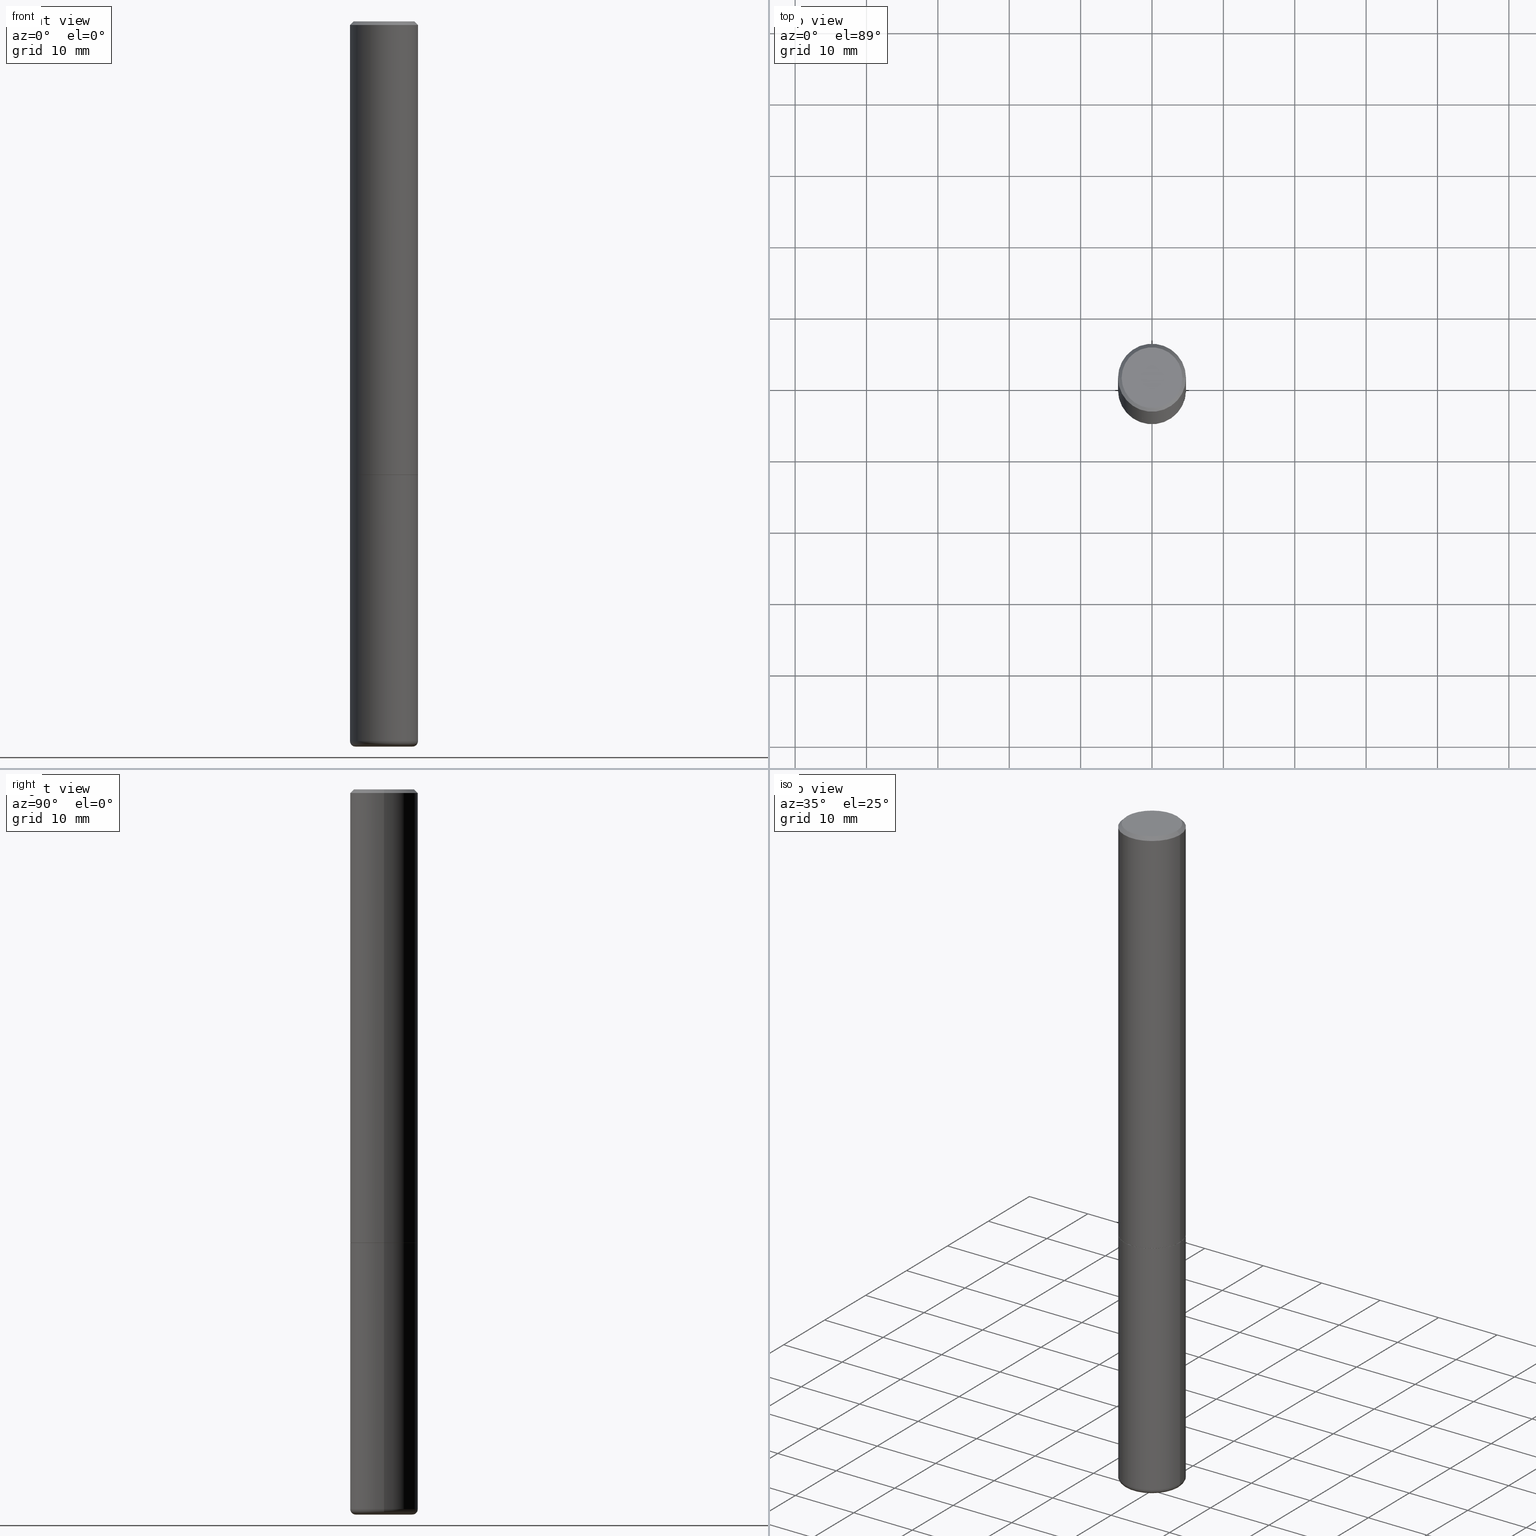
[diagram: canonical four-view strip — front | top / right | iso, engineering-drawing reading convention]
A machine part, canonical four-view strip (front | top / right | iso — engineering-drawing reading convention). The complete STEP part file that produces these views, byte-faithful:
ISO-10303-21;
HEADER;
FILE_DESCRIPTION (( 'STEP AP203' ),
    '1' );
FILE_NAME ('32569.STEP',
    '2022-04-26T19:38:32',
    ( '' ),
    ( '' ),
    'SwSTEP 2.0',
    'SolidWorks 2022',
    '' );
FILE_SCHEMA (( 'CONFIG_CONTROL_DESIGN' ));
ENDSEC;

DATA;
#1 =( CONVERSION_BASED_UNIT ( 'INCH', #295 ) LENGTH_UNIT ( ) NAMED_UNIT ( #7 ) );
#2 = ORIENTED_EDGE ( 'NONE', *, *, #63, .T. ) ;
#3 = VECTOR ( 'NONE', #189, 39.37007874015748143 ) ;
#4 = CIRCLE ( 'NONE', #79, 0.1674999999999997047 ) ;
#5 = CALENDAR_DATE ( 2022, 26, 4 ) ;
#6 = VERTEX_POINT ( 'NONE', #159 ) ;
#7 = DIMENSIONAL_EXPONENTS ( 1.000000000000000000, 0.000000000000000000, 0.000000000000000000, 0.000000000000000000, 0.000000000000000000, 0.000000000000000000, 0.000000000000000000 ) ;
#8 = DATE_AND_TIME ( #269, #179 ) ;
#9 = CARTESIAN_POINT ( 'NONE',  ( 0.1874999999999999722, -1.003451736783519694E-14, -2.499000000000000110 ) ) ;
#10 = PERSON_AND_ORGANIZATION_ROLE ( 'creator' ) ;
#11 = MANIFOLD_SOLID_BREP ( 'Body-Move/Copy2[2]', #406 ) ;
#12 = CALENDAR_DATE ( 2022, 26, 4 ) ;
#13 = PERSON_AND_ORGANIZATION_ROLE ( 'design_supplier' ) ;
#14 = ORIENTED_EDGE ( 'NONE', *, *, #337, .T. ) ;
#15 = ADVANCED_FACE ( 'NONE', ( #283 ), #221, .F. ) ;
#16 = DIRECTION ( 'NONE',  ( -2.445468806185136597E-29, 3.491481338843145583E-15, 1.000000000000000000 ) ) ;
#17 = APPLICATION_CONTEXT ( 'configuration controlled 3d designs of mechanical parts and assemblies' ) ;
#18 = ORIENTED_EDGE ( 'NONE', *, *, #135, .T. ) ;
#19 = CC_DESIGN_PERSON_AND_ORGANIZATION_ASSIGNMENT ( #46, #13, ( #136 ) ) ;
#20 = VERTEX_POINT ( 'NONE', #261 ) ;
#21 = VECTOR ( 'NONE', #388, 39.37007874015747433 ) ;
#22 = AXIS2_PLACEMENT_3D ( 'NONE', #314, #215, #25 ) ;
#23 = CC_DESIGN_PERSON_AND_ORGANIZATION_ASSIGNMENT ( #134, #297, ( #278 ) ) ;
#24 = CYLINDRICAL_SURFACE ( 'NONE', #263, 0.1875000000000000278 ) ;
#25 = DIRECTION ( 'NONE',  ( -1.000000000000000000, 6.982962677686267499E-15, 0.000000000000000000 ) ) ;
#26 = DIRECTION ( 'NONE',  ( -6.982962677686266711E-15, -1.000000000000000000, 3.491481338843145583E-15 ) ) ;
#27 = FACE_OUTER_BOUND ( 'NONE', #320, .T. ) ;
#28 = DIRECTION ( 'NONE',  ( 7.105427357601001859E-15, 1.000000000000000000, -3.491481338843145583E-15 ) ) ;
#29 = CARTESIAN_POINT ( 'NONE',  ( 6.263108486011318528E-46, -8.942059022282683748E-32, -2.561107494060246767E-17 ) ) ;
#30 = VERTEX_POINT ( 'NONE', #366 ) ;
#31 = AXIS2_PLACEMENT_3D ( 'NONE', #155, #397, #290 ) ;
#32 = VERTEX_POINT ( 'NONE', #97 ) ;
#33 = EDGE_CURVE ( 'NONE', #301, #99, #246, .T. ) ;
#34 = CARTESIAN_POINT ( 'NONE',  ( 4.890937612370290675E-31, -6.982962677686316261E-17, -0.02000000000000007327 ) ) ;
#35 = EDGE_LOOP ( 'NONE', ( #131, #153 ) ) ;
#36 = PRODUCT_RELATED_PRODUCT_CATEGORY ( 'detail', '', ( #278 ) ) ;
#37 = CARTESIAN_POINT ( 'NONE',  ( 0.000000000000000000, 0.000000000000000000, 0.000000000000000000 ) ) ;
#38 = DIRECTION ( 'NONE',  ( -2.445468806185136597E-29, 3.491481338843145583E-15, 1.000000000000000000 ) ) ;
#39 = EDGE_LOOP ( 'NONE', ( #150, #227, #440, #404 ) ) ;
#40 = COORDINATED_UNIVERSAL_TIME_OFFSET ( 5, 0, .BEHIND. ) ;
#41 = EDGE_LOOP ( 'NONE', ( #200, #252, #328, #71 ) ) ;
#42 = CIRCLE ( 'NONE', #380, 0.1875000000000000278 ) ;
#43 = APPROVAL_ROLE ( '' ) ;
#44 = ORIENTED_EDGE ( 'NONE', *, *, #303, .F. ) ;
#45 =( NAMED_UNIT ( * ) SI_UNIT ( $, .STERADIAN. ) SOLID_ANGLE_UNIT ( ) );
#46 = PERSON_AND_ORGANIZATION ( #236, #82 ) ;
#47 = AXIS2_PLACEMENT_3D ( 'NONE', #242, #240, #342 ) ;
#48 = CARTESIAN_POINT ( 'NONE',  ( -0.1875000000000000278, -9.962674501607386737E-15, -2.500000000000000000 ) ) ;
#49 = DIRECTION ( 'NONE',  ( 1.000000000000000000, -6.982962677686269077E-15, 0.000000000000000000 ) ) ;
#50 = VECTOR ( 'NONE', #218, 39.37007874015748143 ) ;
#51 = CARTESIAN_POINT ( 'NONE',  ( -0.1569764278068825070, -1.286974886563502981E-14, -3.999995430854691669 ) ) ;
#52 = DIRECTION ( 'NONE',  ( -2.445468806185136597E-29, 3.491481338843145583E-15, 1.000000000000000000 ) ) ;
#53 = CIRCLE ( 'NONE', #382, 0.1875000000000000278 ) ;
#54 = CARTESIAN_POINT ( 'NONE',  ( 6.113672015462842613E-29, -8.728703347107864943E-15, -2.500000000000000000 ) ) ;
#55 = VECTOR ( 'NONE', #288, 39.37007874015748143 ) ;
#56 = LINE ( 'NONE', #315, #171 ) ;
#57 = LINE ( 'NONE', #348, #55 ) ;
#58 = CARTESIAN_POINT ( 'NONE',  ( 6.113672015462842613E-29, -8.728703347107864943E-15, -2.500000000000000000 ) ) ;
#59 =( LENGTH_UNIT ( ) NAMED_UNIT ( * ) SI_UNIT ( $, .METRE. ) );
#60 = ORIENTED_EDGE ( 'NONE', *, *, #284, .F. ) ;
#61 = ADVANCED_BREP_SHAPE_REPRESENTATION ( '32569', ( #143, #11, #323 ), #184 ) ;
#62 = DIRECTION ( 'NONE',  ( -2.445468806185136597E-29, 3.491481338843145583E-15, 1.000000000000000000 ) ) ;
#63 = EDGE_CURVE ( 'NONE', #101, #123, #195, .T. ) ;
#64 = CYLINDRICAL_SURFACE ( 'NONE', #126, 0.1874999999999998335 ) ;
#65 = DIRECTION ( 'NONE',  ( 2.438088387897960049E-29, -3.491481338843145188E-15, -1.000000000000000000 ) ) ;
#66 = ORIENTED_EDGE ( 'NONE', *, *, #72, .T. ) ;
#67 = VECTOR ( 'NONE', #389, 39.37007874015748143 ) ;
#68 = DIRECTION ( 'NONE',  ( -2.445468806185136597E-29, 3.491481338843145583E-15, 1.000000000000000000 ) ) ;
#69 = ORIENTED_EDGE ( 'NONE', *, *, #90, .F. ) ;
#70 = DATE_AND_TIME ( #5, #270 ) ;
#71 = ORIENTED_EDGE ( 'NONE', *, *, #360, .F. ) ;
#72 = EDGE_CURVE ( 'NONE', #32, #192, #414, .T. ) ;
#73 = PERSON_AND_ORGANIZATION ( #236, #82 ) ;
#74 = ORIENTED_EDGE ( 'NONE', *, *, #107, .T. ) ;
#75 = DIRECTION ( 'NONE',  ( -2.445468806185136877E-29, 3.491481338843145188E-15, 1.000000000000000000 ) ) ;
#76 = CONICAL_SURFACE ( 'NONE', #204, 0.1874999999999996669, 0.7853981633974460586 ) ;
#77 = APPLICATION_PROTOCOL_DEFINITION ( 'international standard', 'config_control_design', 1994, #17 ) ;
#78 = APPLICATION_PROTOCOL_DEFINITION ( 'international standard', 'config_control_design', 1994, #308 ) ;
#79 = AXIS2_PLACEMENT_3D ( 'NONE', #29, #38, #319 ) ;
#80 = DIRECTION ( 'NONE',  ( 1.000000000000000000, -6.982962677686262766E-15, 0.000000000000000000 ) ) ;
#81 = CIRCLE ( 'NONE', #423, 0.02999999999999998848 ) ;
#82 = ORGANIZATION ( 'UNSPECIFIED', 'UNSPECIFIED', '' ) ;
#83 = ORIENTED_EDGE ( 'NONE', *, *, #279, .F. ) ;
#84 = DIRECTION ( 'NONE',  ( 1.000000000000000000, -6.982962677686267499E-15, 0.000000000000000000 ) ) ;
#85 = DIRECTION ( 'NONE',  ( 1.000000000000000000, -6.982962677686266711E-15, 4.876176775795935793E-29 ) ) ;
#86 = FACE_OUTER_BOUND ( 'NONE', #293, .T. ) ;
#87 = AXIS2_PLACEMENT_3D ( 'NONE', #92, #327, #147 ) ;
#88 = CARTESIAN_POINT ( 'NONE',  ( 0.000000000000000000, 0.000000000000000000, 0.000000000000000000 ) ) ;
#89 = EDGE_LOOP ( 'NONE', ( #400, #127, #14, #44 ) ) ;
#90 = EDGE_CURVE ( 'NONE', #233, #20, #105, .T. ) ;
#91 = DIRECTION ( 'NONE',  ( -2.438088387897960049E-29, 3.491481338843145188E-15, 1.000000000000000000 ) ) ;
#92 = CARTESIAN_POINT ( 'NONE',  ( 1.060534628401079487E-27, -1.514162378556626208E-13, -43.36733413727260000 ) ) ;
#93 = ORIENTED_EDGE ( 'NONE', *, *, #210, .T. ) ;
#94 = DIRECTION ( 'NONE',  ( 1.000000000000000000, -6.982962677686266711E-15, 0.000000000000000000 ) ) ;
#95 = VERTEX_POINT ( 'NONE', #186 ) ;
#96 = PRODUCT_DEFINITION_SHAPE ( 'NONE', 'NONE',  #172 ) ;
#97 = CARTESIAN_POINT ( 'NONE',  ( 0.1864999999999999991, -1.003102588649635236E-14, -2.500000000000000000 ) ) ;
#98 = DESIGN_CONTEXT ( 'detailed design', #17, 'design' ) ;
#99 = VERTEX_POINT ( 'NONE', #405 ) ;
#100 = COORDINATED_UNIVERSAL_TIME_OFFSET ( 5, 0, .BEHIND. ) ;
#101 = VERTEX_POINT ( 'NONE', #198 ) ;
#102 = CARTESIAN_POINT ( 'NONE',  ( -0.1875000000000000278, 1.332267629550188046E-15, -9.223003294227947991E-30 ) ) ;
#103 = APPROVAL_DATE_TIME ( #238, #108 ) ;
#104 = CC_DESIGN_SECURITY_CLASSIFICATION ( #381, ( #136 ) ) ;
#105 = CIRCLE ( 'NONE', #286, 0.1875000000000000278 ) ;
#106 = DATE_AND_TIME ( #12, #110 ) ;
#107 = EDGE_CURVE ( 'NONE', #123, #101, #343, .T. ) ;
#108 = APPROVAL ( #137, 'UNSPECIFIED' ) ;
#109 = APPROVAL_STATUS ( 'not_yet_approved' ) ;
#110 = LOCAL_TIME ( 15, 38, 32.00000000000000000, #100 ) ;
#111 = AXIS2_PLACEMENT_3D ( 'NONE', #291, #167, #438 ) ;
#112 = ORIENTED_EDGE ( 'NONE', *, *, #329, .T. ) ;
#113 = CARTESIAN_POINT ( 'NONE',  ( 1.309305502066236145E-15, 0.1874999999999912847, -2.500000000000000444 ) ) ;
#114 = ADVANCED_FACE ( 'NONE', ( #391 ), #24, .T. ) ;
#115 = DIRECTION ( 'NONE',  ( -2.445468806185136597E-29, 3.491481338843145583E-15, 1.000000000000000000 ) ) ;
#116 = CARTESIAN_POINT ( 'NONE',  ( 9.708511160554992872E-29, -1.386118091520728738E-14, -3.970000000000000195 ) ) ;
#117 = VERTEX_POINT ( 'NONE', #285 ) ;
#118 = DIRECTION ( 'NONE',  ( -2.445468806185136597E-29, 3.491481338843145583E-15, 1.000000000000000000 ) ) ;
#119 = CARTESIAN_POINT ( 'NONE',  ( 0.1874999999999996669, -1.356173001359023100E-15, -0.02000000000000007327 ) ) ;
#120 = ORIENTED_EDGE ( 'NONE', *, *, #33, .T. ) ;
#121 = CARTESIAN_POINT ( 'NONE',  ( 1.608314383320515846E-18, -1.395634262561750239E-14, -3.997255397115124342 ) ) ;
#122 = CARTESIAN_POINT ( 'NONE',  ( -0.1875000000000000278, -1.252891328565709953E-14, -3.969999999999999307 ) ) ;
#123 = VERTEX_POINT ( 'NONE', #353 ) ;
#124 = CARTESIAN_POINT ( 'NONE',  ( 0.1575000000000000289, -1.496099753694287407E-14, -3.970000000000000195 ) ) ;
#125 = FACE_OUTER_BOUND ( 'NONE', #289, .T. ) ;
#126 = AXIS2_PLACEMENT_3D ( 'NONE', #427, #322, #85 ) ;
#127 = ORIENTED_EDGE ( 'NONE', *, *, #243, .T. ) ;
#128 = CIRCLE ( 'NONE', #182, 0.1874999999999999722 ) ;
#129 = CC_DESIGN_APPROVAL ( #138, ( #136 ) ) ;
#130 = DIRECTION ( 'NONE',  ( 0.000000000000000000, 0.000000000000000000, 1.000000000000000000 ) ) ;
#131 = ORIENTED_EDGE ( 'NONE', *, *, #341, .T. ) ;
#132 = DATE_TIME_ROLE ( 'creation_date' ) ;
#133 = FACE_OUTER_BOUND ( 'NONE', #365, .T. ) ;
#134 = PERSON_AND_ORGANIZATION ( #236, #82 ) ;
#135 = EDGE_CURVE ( 'NONE', #220, #430, #211, .T. ) ;
#136 = PRODUCT_DEFINITION_FORMATION_WITH_SPECIFIED_SOURCE ( 'ANY', '', #278, .NOT_KNOWN. ) ;
#137 = APPROVAL_STATUS ( 'not_yet_approved' ) ;
#138 = APPROVAL ( #109, 'UNSPECIFIED' ) ;
#139 = FACE_OUTER_BOUND ( 'NONE', #35, .T. ) ;
#140 = CIRCLE ( 'NONE', #287, 0.1569764278068817576 ) ;
#141 = ADVANCED_FACE ( 'NONE', ( #294 ), #442, .T. ) ;
#142 = EDGE_CURVE ( 'NONE', #117, #101, #56, .T. ) ;
#143 = MANIFOLD_SOLID_BREP ( 'Body-Move/Copy2[1]', #163 ) ;
#144 = AXIS2_PLACEMENT_3D ( 'NONE', #259, #250, #395 ) ;
#145 = DIRECTION ( 'NONE',  ( 1.000000000000000000, -6.982962677686265922E-15, 4.876176775795935793E-29 ) ) ;
#146 = EDGE_CURVE ( 'NONE', #99, #6, #81, .T. ) ;
#147 = DIRECTION ( 'NONE',  ( -1.000000000000000000, 6.982962677686267499E-15, 0.000000000000000000 ) ) ;
#148 = DIRECTION ( 'NONE',  ( 1.000000000000000000, -6.982962677686265922E-15, 4.876176775795935793E-29 ) ) ;
#149 = FACE_OUTER_BOUND ( 'NONE', #166, .T. ) ;
#150 = ORIENTED_EDGE ( 'NONE', *, *, #142, .F. ) ;
#151 = FACE_OUTER_BOUND ( 'NONE', #346, .T. ) ;
#152 = AXIS2_PLACEMENT_3D ( 'NONE', #37, #214, #193 ) ;
#153 = ORIENTED_EDGE ( 'NONE', *, *, #441, .T. ) ;
#154 = CIRCLE ( 'NONE', #407, 0.1864999999999999991 ) ;
#155 = CARTESIAN_POINT ( 'NONE',  ( 6.113672015462842613E-29, -8.728703347107864943E-15, -2.500000000000000000 ) ) ;
#156 = FACE_OUTER_BOUND ( 'NONE', #39, .T. ) ;
#157 = DIRECTION ( 'NONE',  ( 1.000000000000000000, -6.982962677686265922E-15, 4.876176775795935793E-29 ) ) ;
#158 = ORIENTED_EDGE ( 'NONE', *, *, #135, .F. ) ;
#159 = CARTESIAN_POINT ( 'NONE',  ( 0.1875000000000000278, -1.517048641727346081E-14, -3.969999999999999307 ) ) ;
#160 = CARTESIAN_POINT ( 'NONE',  ( 0.000000000000000000, 0.000000000000000000, 0.000000000000000000 ) ) ;
#161 = ORIENTED_EDGE ( 'NONE', *, *, #176, .F. ) ;
#162 = EDGE_LOOP ( 'NONE', ( #177, #436, #74, #83 ) ) ;
#163 = CLOSED_SHELL ( 'NONE', ( #387, #273, #363, #345, #433, #114, #398 ) ) ;
#164 = VECTOR ( 'NONE', #183, 39.37007874015748143 ) ;
#165 = CALENDAR_DATE ( 2022, 26, 4 ) ;
#166 = EDGE_LOOP ( 'NONE', ( #296, #281, #361, #2 ) ) ;
#167 = DIRECTION ( 'NONE',  ( -2.445468806185136597E-29, 3.491481338843145583E-15, 1.000000000000000000 ) ) ;
#168 = ADVANCED_FACE ( 'NONE', ( #217 ), #310, .T. ) ;
#169 =( NAMED_UNIT ( * ) PLANE_ANGLE_UNIT ( ) SI_UNIT ( $, .RADIAN. ) );
#170 = UNCERTAINTY_MEASURE_WITH_UNIT (LENGTH_MEASURE( 1.000000000000000082E-05 ), #1, 'distance_accuracy_value', 'NONE');
#171 = VECTOR ( 'NONE', #321, 39.37007874015748143 ) ;
#172 = PRODUCT_DEFINITION ( 'UNKNOWN', '', #136, #98 ) ;
#173 = AXIS2_PLACEMENT_3D ( 'NONE', #248, #62, #350 ) ;
#174 = AXIS2_PLACEMENT_3D ( 'NONE', #373, #340, #206 ) ;
#175 = EDGE_CURVE ( 'NONE', #298, #117, #128, .T. ) ;
#176 = EDGE_CURVE ( 'NONE', #298, #123, #209, .T. ) ;
#177 = ORIENTED_EDGE ( 'NONE', *, *, #441, .F. ) ;
#178 = CARTESIAN_POINT ( 'NONE',  ( 4.890937612370290675E-31, -6.982962677686316261E-17, -0.02000000000000007327 ) ) ;
#179 = LOCAL_TIME ( 15, 38, 32.00000000000000000, #40 ) ;
#180 = LINE ( 'NONE', #258, #50 ) ;
#181 = APPROVAL_PERSON_ORGANIZATION ( #232, #108, #237 ) ;
#182 = AXIS2_PLACEMENT_3D ( 'NONE', #437, #401, #49 ) ;
#183 = DIRECTION ( 'NONE',  ( -2.445468806185136877E-29, 3.491481338843145188E-15, 1.000000000000000000 ) ) ;
#184 =( GEOMETRIC_REPRESENTATION_CONTEXT ( 3 ) GLOBAL_UNCERTAINTY_ASSIGNED_CONTEXT ( ( #170 ) ) GLOBAL_UNIT_ASSIGNED_CONTEXT ( ( #1, #169, #45 ) ) REPRESENTATION_CONTEXT ( 'NONE', 'WORKASPACE' ) );
#185 = DIRECTION ( 'NONE',  ( -2.445468806185136597E-29, 3.491481338843145583E-15, 1.000000000000000000 ) ) ;
#186 = CARTESIAN_POINT ( 'NONE',  ( -0.1674999999999997047, 1.204561061900878878E-15, -2.561107494061076920E-17 ) ) ;
#187 = DIRECTION ( 'NONE',  ( 1.000000000000000000, -6.982962677686271444E-15, 0.000000000000000000 ) ) ;
#188 = DIRECTION ( 'NONE',  ( -1.000000000000000000, 6.982962677686267499E-15, 0.000000000000000000 ) ) ;
#189 = DIRECTION ( 'NONE',  ( -2.445468806185136877E-29, 3.491481338843145188E-15, 1.000000000000000000 ) ) ;
#190 = ORIENTED_EDGE ( 'NONE', *, *, #72, .F. ) ;
#191 = DIRECTION ( 'NONE',  ( -2.445468806185136597E-29, 3.491481338843145583E-15, 1.000000000000000000 ) ) ;
#192 = VERTEX_POINT ( 'NONE', #386 ) ;
#193 = DIRECTION ( 'NONE',  ( 1.000000000000000000, -6.982962677686266711E-15, 4.876176775795935793E-29 ) ) ;
#194 = DIRECTION ( 'NONE',  ( 2.445468806185136597E-29, -3.491481338843145583E-15, -1.000000000000000000 ) ) ;
#195 = CIRCLE ( 'NONE', #249, 0.1874999999999996669 ) ;
#196 = EDGE_LOOP ( 'NONE', ( #60, #396, #267, #69 ) ) ;
#197 = AXIS2_PLACEMENT_3D ( 'NONE', #277, #16, #80 ) ;
#198 = CARTESIAN_POINT ( 'NONE',  ( -0.1874999999999996669, 1.239475875289309738E-15, -0.02000000000000007327 ) ) ;
#199 = ORIENTED_EDGE ( 'NONE', *, *, #256, .F. ) ;
#200 = ORIENTED_EDGE ( 'NONE', *, *, #338, .T. ) ;
#201 = EDGE_CURVE ( 'NONE', #430, #6, #42, .T. ) ;
#202 = DATE_TIME_ROLE ( 'classification_date' ) ;
#203 = ORIENTED_EDGE ( 'NONE', *, *, #383, .T. ) ;
#204 = AXIS2_PLACEMENT_3D ( 'NONE', #34, #292, #408 ) ;
#205 = PERSON_AND_ORGANIZATION ( #236, #82 ) ;
#206 = DIRECTION ( 'NONE',  ( 1.000000000000000000, -6.982962677686269077E-15, 0.000000000000000000 ) ) ;
#207 = APPROVAL_DATE_TIME ( #70, #379 ) ;
#208 = AXIS2_PLACEMENT_3D ( 'NONE', #58, #91, #148 ) ;
#209 = LINE ( 'NONE', #245, #3 ) ;
#210 = EDGE_CURVE ( 'NONE', #20, #233, #53, .T. ) ;
#211 = CIRCLE ( 'NONE', #390, 0.02999999999999998848 ) ;
#212 = CC_DESIGN_PERSON_AND_ORGANIZATION_ASSIGNMENT ( #205, #10, ( #172 ) ) ;
#213 = DIRECTION ( 'NONE',  ( -2.445468806185136597E-29, 3.491481338843145583E-15, 1.000000000000000000 ) ) ;
#214 = DIRECTION ( 'NONE',  ( -2.445468806185136597E-29, 3.491481338843145583E-15, 1.000000000000000000 ) ) ;
#215 = DIRECTION ( 'NONE',  ( 2.445468806185136597E-29, -3.491481338843145583E-15, -1.000000000000000000 ) ) ;
#216 = AXIS2_PLACEMENT_3D ( 'NONE', #226, #52, #399 ) ;
#217 = FACE_OUTER_BOUND ( 'NONE', #325, .T. ) ;
#218 = DIRECTION ( 'NONE',  ( -0.7071067811865459074, 2.468850131082240100E-15, -0.7071067811865491270 ) ) ;
#219 = FACE_OUTER_BOUND ( 'NONE', #162, .T. ) ;
#220 = VERTEX_POINT ( 'NONE', #51 ) ;
#221 = PLANE ( 'NONE',  #208 ) ;
#222 = CYLINDRICAL_SURFACE ( 'NONE', #339, 0.1875000000000000278 ) ;
#223 = ORIENTED_EDGE ( 'NONE', *, *, #146, .T. ) ;
#224 = DIRECTION ( 'NONE',  ( 1.000000000000000000, -6.982962677686267499E-15, 0.000000000000000000 ) ) ;
#225 = ADVANCED_FACE ( 'NONE', ( #306 ), #251, .T. ) ;
#226 = CARTESIAN_POINT ( 'NONE',  ( 9.708511160554990630E-29, -1.386118091520728581E-14, -3.969999999999999307 ) ) ;
#227 = ORIENTED_EDGE ( 'NONE', *, *, #303, .T. ) ;
#228 = TOROIDAL_SURFACE ( 'NONE', #111, 0.1575000000000000289, 0.02999999999999999542 ) ;
#229 = CARTESIAN_POINT ( 'NONE',  ( -1.608314383125012578E-18, -1.395634262561750239E-14, -3.997255397115124342 ) ) ;
#230 = APPROVAL_ROLE ( '' ) ;
#231 = ORIENTED_EDGE ( 'NONE', *, *, #201, .F. ) ;
#232 = PERSON_AND_ORGANIZATION ( #236, #82 ) ;
#233 = VERTEX_POINT ( 'NONE', #48 ) ;
#234 = COORDINATED_UNIVERSAL_TIME_OFFSET ( 5, 0, .BEHIND. ) ;
#235 = AXIS2_PLACEMENT_3D ( 'NONE', #113, #65, #352 ) ;
#236 = PERSON ( 'UNSPECIFIED', 'UNSPECIFIED', 'UNSPECIFIED', ('UNSPECIFIED'), ('UNSPECIFIED'), ('UNSPECIFIED') ) ;
#237 = APPROVAL_ROLE ( '' ) ;
#238 = DATE_AND_TIME ( #165, #413 ) ;
#239 = CONICAL_SURFACE ( 'NONE', #344, 0.1874999999999996669, 0.7853981633974460586 ) ;
#240 = DIRECTION ( 'NONE',  ( 2.438088387897960049E-29, -3.491481338843145188E-15, -1.000000000000000000 ) ) ;
#241 = APPROVAL_PERSON_ORGANIZATION ( #417, #138, #230 ) ;
#242 = CARTESIAN_POINT ( 'NONE',  ( 1.169646248512447623E-15, 0.1674999999999997047, -5.976286617265271623E-16 ) ) ;
#243 = EDGE_CURVE ( 'NONE', #192, #32, #154, .T. ) ;
#244 = ORIENTED_EDGE ( 'NONE', *, *, #422, .T. ) ;
#245 = CARTESIAN_POINT ( 'NONE',  ( 0.1874999999999998335, -1.309305502066173825E-15, 9.142831454617371204E-30 ) ) ;
#246 = LINE ( 'NONE', #121, #21 ) ;
#247 = LINE ( 'NONE', #439, #67 ) ;
#248 = CARTESIAN_POINT ( 'NONE',  ( 6.113672015462842613E-29, -8.728703347107864943E-15, -2.500000000000000000 ) ) ;
#249 = AXIS2_PLACEMENT_3D ( 'NONE', #434, #257, #224 ) ;
#250 = DIRECTION ( 'NONE',  ( -2.445468806185136597E-29, 3.491481338843145583E-15, 1.000000000000000000 ) ) ;
#251 = CONICAL_SURFACE ( 'NONE', #197, 0.1864999999999999991, 0.7853981633975336552 ) ;
#252 = ORIENTED_EDGE ( 'NONE', *, *, #284, .T. ) ;
#253 = DIRECTION ( 'NONE',  ( 1.000000000000000000, -6.982962677686270655E-15, 0.000000000000000000 ) ) ;
#254 = DIRECTION ( 'NONE',  ( -2.445468806185136597E-29, 3.491481338843145583E-15, 1.000000000000000000 ) ) ;
#255 = ORIENTED_EDGE ( 'NONE', *, *, #256, .T. ) ;
#256 = EDGE_CURVE ( 'NONE', #99, #220, #424, .T. ) ;
#257 = DIRECTION ( 'NONE',  ( -2.445468806185136597E-29, 3.491481338843145583E-15, 1.000000000000000000 ) ) ;
#258 = CARTESIAN_POINT ( 'NONE',  ( -0.1874999999999996669, 1.239475875289309738E-15, -0.02000000000000007327 ) ) ;
#259 = CARTESIAN_POINT ( 'NONE',  ( 6.263108486011318528E-46, -8.942059022282683748E-32, -2.561107494060246767E-17 ) ) ;
#260 = ORIENTED_EDGE ( 'NONE', *, *, #175, .F. ) ;
#261 = CARTESIAN_POINT ( 'NONE',  ( 0.1875000000000000278, -1.003800884917403995E-14, -2.500000000000000000 ) ) ;
#262 = CARTESIAN_POINT ( 'NONE',  ( 4.890937612370290675E-31, -6.982962677686316261E-17, -0.02000000000000007327 ) ) ;
#263 = AXIS2_PLACEMENT_3D ( 'NONE', #88, #68, #145 ) ;
#264 = ORIENTED_EDGE ( 'NONE', *, *, #175, .T. ) ;
#265 = APPROVAL_PERSON_ORGANIZATION ( #375, #379, #43 ) ;
#266 = DATE_AND_TIME ( #330, #313 ) ;
#267 = ORIENTED_EDGE ( 'NONE', *, *, #360, .T. ) ;
#268 = PERSON_AND_ORGANIZATION ( #236, #82 ) ;
#269 = CALENDAR_DATE ( 2022, 26, 4 ) ;
#270 = LOCAL_TIME ( 15, 38, 32.00000000000000000, #234 ) ;
#271 = ADVANCED_FACE ( 'NONE', ( #156 ), #64, .T. ) ;
#272 = DIRECTION ( 'NONE',  ( 1.000000000000000000, -6.982962677686266711E-15, 0.000000000000000000 ) ) ;
#273 = ADVANCED_FACE ( 'NONE', ( #133 ), #228, .T. ) ;
#274 = PLANE ( 'NONE',  #47 ) ;
#275 = CONICAL_SURFACE ( 'NONE', #87, 2255.510300424621619, 1.553343034274961232 ) ;
#276 = CARTESIAN_POINT ( 'NONE',  ( 6.113672015462842613E-29, -8.728703347107864943E-15, -2.500000000000000000 ) ) ;
#277 = CARTESIAN_POINT ( 'NONE',  ( 6.113672015462842613E-29, -8.728703347107864943E-15, -2.500000000000000000 ) ) ;
#278 = PRODUCT ( '32569', '32569', '', ( #369 ) ) ;
#279 = EDGE_CURVE ( 'NONE', #95, #101, #180, .T. ) ;
#280 = CC_DESIGN_DATE_AND_TIME_ASSIGNMENT ( #8, #132, ( #172 ) ) ;
#281 = ORIENTED_EDGE ( 'NONE', *, *, #341, .F. ) ;
#282 = PLANE ( 'NONE',  #235 ) ;
#283 = FACE_OUTER_BOUND ( 'NONE', #331, .T. ) ;
#284 = EDGE_CURVE ( 'NONE', #430, #233, #402, .T. ) ;
#285 = CARTESIAN_POINT ( 'NONE',  ( -0.1874999999999999722, -3.065253116722752402E-15, -2.499000000000000110 ) ) ;
#286 = AXIS2_PLACEMENT_3D ( 'NONE', #356, #118, #94 ) ;
#287 = AXIS2_PLACEMENT_3D ( 'NONE', #354, #254, #429 ) ;
#288 = DIRECTION ( 'NONE',  ( 0.7071067811866078578, -2.468850131082888544E-15, 0.7071067811864871766 ) ) ;
#289 = EDGE_LOOP ( 'NONE', ( #355, #120, #311 ) ) ;
#290 = DIRECTION ( 'NONE',  ( 1.000000000000000000, -6.982962677686262766E-15, 0.000000000000000000 ) ) ;
#291 = CARTESIAN_POINT ( 'NONE',  ( 9.708511160554992872E-29, -1.386118091520728738E-14, -3.970000000000000195 ) ) ;
#292 = DIRECTION ( 'NONE',  ( 2.445468806185136597E-29, -3.491481338843145583E-15, -1.000000000000000000 ) ) ;
#293 = EDGE_LOOP ( 'NONE', ( #158, #203, #223, #231 ) ) ;
#294 = FACE_OUTER_BOUND ( 'NONE', #411, .T. ) ;
#295 = LENGTH_MEASURE_WITH_UNIT ( LENGTH_MEASURE( 0.02539999999999999897 ), #59 );
#296 = ORIENTED_EDGE ( 'NONE', *, *, #377, .F. ) ;
#297 = PERSON_AND_ORGANIZATION_ROLE ( 'design_owner' ) ;
#298 = VERTEX_POINT ( 'NONE', #9 ) ;
#299 = TOROIDAL_SURFACE ( 'NONE', #305, 0.1575000000000000289, 0.02999999999999999542 ) ;
#300 = CARTESIAN_POINT ( 'NONE',  ( 0.000000000000000000, 0.000000000000000000, 0.000000000000000000 ) ) ;
#301 = VERTEX_POINT ( 'NONE', #312 ) ;
#302 = SECURITY_CLASSIFICATION_LEVEL ( 'unclassified' ) ;
#303 = EDGE_CURVE ( 'NONE', #117, #298, #351, .T. ) ;
#304 = AXIS2_PLACEMENT_3D ( 'NONE', #357, #335, #187 ) ;
#305 = AXIS2_PLACEMENT_3D ( 'NONE', #116, #191, #403 ) ;
#306 = FACE_OUTER_BOUND ( 'NONE', #89, .T. ) ;
#307 = ADVANCED_FACE ( 'NONE', ( #139 ), #274, .F. ) ;
#308 = APPLICATION_CONTEXT ( 'configuration controlled 3d designs of mechanical parts and assemblies' ) ;
#309 = ORIENTED_EDGE ( 'NONE', *, *, #33, .F. ) ;
#310 = CONICAL_SURFACE ( 'NONE', #31, 0.1864999999999999991, 0.7853981633975336552 ) ;
#311 = ORIENTED_EDGE ( 'NONE', *, *, #383, .F. ) ;
#312 = CARTESIAN_POINT ( 'NONE',  ( 9.774040304069014861E-29, -1.395795094000072513E-14, -3.997255397115124342 ) ) ;
#313 = LOCAL_TIME ( 15, 38, 32.00000000000000000, #415 ) ;
#314 = CARTESIAN_POINT ( 'NONE',  ( 1.060534628401079487E-27, -1.514162378556626208E-13, -43.36733413727260000 ) ) ;
#315 = CARTESIAN_POINT ( 'NONE',  ( -0.1874999999999998335, 1.332267629550186665E-15, -9.223003294227939583E-30 ) ) ;
#316 = DIRECTION ( 'NONE',  ( 0.7071067811865459074, -7.319954787623249734E-15, -0.7071067811865491270 ) ) ;
#317 = CC_DESIGN_PERSON_AND_ORGANIZATION_ASSIGNMENT ( #73, #412, ( #381 ) ) ;
#318 = ORIENTED_EDGE ( 'NONE', *, *, #90, .T. ) ;
#319 = DIRECTION ( 'NONE',  ( 1.000000000000000000, -6.982962677686266711E-15, 4.875370901645449596E-29 ) ) ;
#320 = EDGE_LOOP ( 'NONE', ( #93, #318 ) ) ;
#321 = DIRECTION ( 'NONE',  ( -2.445468806185136877E-29, 3.491481338843145188E-15, 1.000000000000000000 ) ) ;
#322 = DIRECTION ( 'NONE',  ( -2.445468806185136597E-29, 3.491481338843145583E-15, 1.000000000000000000 ) ) ;
#323 = AXIS2_PLACEMENT_3D ( 'NONE', #300, #130, #336 ) ;
#324 = LINE ( 'NONE', #119, #334 ) ;
#325 = EDGE_LOOP ( 'NONE', ( #66, #244, #260, #370 ) ) ;
#326 = DIRECTION ( 'NONE',  ( -1.000000000000000000, 7.105427357600993970E-15, 0.000000000000000000 ) ) ;
#327 = DIRECTION ( 'NONE',  ( 2.445468806185136597E-29, -3.491481338843145583E-15, -1.000000000000000000 ) ) ;
#328 = ORIENTED_EDGE ( 'NONE', *, *, #210, .F. ) ;
#329 = EDGE_CURVE ( 'NONE', #301, #220, #385, .T. ) ;
#330 = CALENDAR_DATE ( 2022, 26, 4 ) ;
#331 = EDGE_LOOP ( 'NONE', ( #190, #425 ) ) ;
#332 = COORDINATED_UNIVERSAL_TIME_OFFSET ( 5, 0, .BEHIND. ) ;
#333 = ORIENTED_EDGE ( 'NONE', *, *, #142, .T. ) ;
#334 = VECTOR ( 'NONE', #316, 39.37007874015748143 ) ;
#335 = DIRECTION ( 'NONE',  ( -2.445468806185136597E-29, 3.491481338843145583E-15, 1.000000000000000000 ) ) ;
#336 = DIRECTION ( 'NONE',  ( 1.000000000000000000, 0.000000000000000000, 0.000000000000000000 ) ) ;
#337 = EDGE_CURVE ( 'NONE', #32, #298, #57, .T. ) ;
#338 = EDGE_CURVE ( 'NONE', #6, #430, #393, .T. ) ;
#339 = AXIS2_PLACEMENT_3D ( 'NONE', #160, #358, #157 ) ;
#340 = DIRECTION ( 'NONE',  ( -2.445468806185136597E-29, 3.491481338843145583E-15, 1.000000000000000000 ) ) ;
#341 = EDGE_CURVE ( 'NONE', #95, #30, #4, .T. ) ;
#342 = DIRECTION ( 'NONE',  ( -1.000000000000000000, 6.982962677686265922E-15, -4.876176775795935793E-29 ) ) ;
#343 = CIRCLE ( 'NONE', #432, 0.1874999999999996669 ) ;
#344 = AXIS2_PLACEMENT_3D ( 'NONE', #262, #194, #188 ) ;
#345 = ADVANCED_FACE ( 'NONE', ( #151 ), #275, .F. ) ;
#346 = EDGE_LOOP ( 'NONE', ( #309, #112, #199 ) ) ;
#347 = CARTESIAN_POINT ( 'NONE',  ( 9.708511160554990630E-29, -1.386118091520728581E-14, -3.969999999999999307 ) ) ;
#348 = CARTESIAN_POINT ( 'NONE',  ( 0.1864999999999999991, -1.003102588649635236E-14, -2.500000000000000000 ) ) ;
#349 = DIRECTION ( 'NONE',  ( 1.000000000000000000, -6.982962677686261189E-15, 0.000000000000000000 ) ) ;
#350 = DIRECTION ( 'NONE',  ( 1.000000000000000000, -6.982962677686262766E-15, 0.000000000000000000 ) ) ;
#351 = CIRCLE ( 'NONE', #174, 0.1874999999999999722 ) ;
#352 = DIRECTION ( 'NONE',  ( -1.000000000000000000, 6.982962677686265922E-15, -4.876176775795935793E-29 ) ) ;
#353 = CARTESIAN_POINT ( 'NONE',  ( 0.1874999999999996669, -1.356173001359023100E-15, -0.02000000000000007327 ) ) ;
#354 = CARTESIAN_POINT ( 'NONE',  ( 9.781864051038224708E-29, -1.396590940228700310E-14, -3.999995430854691669 ) ) ;
#355 = ORIENTED_EDGE ( 'NONE', *, *, #329, .F. ) ;
#356 = CARTESIAN_POINT ( 'NONE',  ( 6.113672015462842613E-29, -8.728703347107864943E-15, -2.500000000000000000 ) ) ;
#357 = CARTESIAN_POINT ( 'NONE',  ( 9.781864051038224708E-29, -1.396590940228700310E-14, -3.999995430854691669 ) ) ;
#358 = DIRECTION ( 'NONE',  ( -2.445468806185136597E-29, 3.491481338843145583E-15, 1.000000000000000000 ) ) ;
#359 = ORIENTED_EDGE ( 'NONE', *, *, #338, .F. ) ;
#360 = EDGE_CURVE ( 'NONE', #6, #20, #435, .T. ) ;
#361 = ORIENTED_EDGE ( 'NONE', *, *, #279, .T. ) ;
#362 = CIRCLE ( 'NONE', #144, 0.1674999999999997047 ) ;
#363 = ADVANCED_FACE ( 'NONE', ( #125 ), #372, .F. ) ;
#364 = CARTESIAN_POINT ( 'NONE',  ( 0.1875000000000000278, -1.309305502066175008E-15, 9.142831454617381013E-30 ) ) ;
#365 = EDGE_LOOP ( 'NONE', ( #255, #18, #359, #409 ) ) ;
#366 = CARTESIAN_POINT ( 'NONE',  ( 0.1674999999999997047, -1.252653207992876119E-15, -2.561107494059399666E-17 ) ) ;
#367 = APPROVAL_STATUS ( 'not_yet_approved' ) ;
#368 = ORIENTED_EDGE ( 'NONE', *, *, #107, .F. ) ;
#369 = MECHANICAL_CONTEXT ( 'NONE', #308, 'mechanical' ) ;
#370 = ORIENTED_EDGE ( 'NONE', *, *, #337, .F. ) ;
#371 = PERSON_AND_ORGANIZATION_ROLE ( 'creator' ) ;
#372 = CONICAL_SURFACE ( 'NONE', #22, 2255.510300424621619, 1.553343034274961232 ) ;
#373 = CARTESIAN_POINT ( 'NONE',  ( 6.111226546656657010E-29, -8.725211865769021935E-15, -2.499000000000000110 ) ) ;
#374 = ADVANCED_FACE ( 'NONE', ( #219 ), #239, .T. ) ;
#375 = PERSON_AND_ORGANIZATION ( #236, #82 ) ;
#376 = SHAPE_DEFINITION_REPRESENTATION ( #96, #61 ) ;
#377 = EDGE_CURVE ( 'NONE', #30, #123, #324, .T. ) ;
#378 = CC_DESIGN_APPROVAL ( #379, ( #172 ) ) ;
#379 = APPROVAL ( #367, 'UNSPECIFIED' ) ;
#380 = AXIS2_PLACEMENT_3D ( 'NONE', #347, #213, #349 ) ;
#381 = SECURITY_CLASSIFICATION ( '', '', #302 ) ;
#382 = AXIS2_PLACEMENT_3D ( 'NONE', #54, #185, #272 ) ;
#383 = EDGE_CURVE ( 'NONE', #220, #99, #140, .T. ) ;
#384 = CC_DESIGN_DATE_AND_TIME_ASSIGNMENT ( #106, #202, ( #381 ) ) ;
#385 = LINE ( 'NONE', #229, #416 ) ;
#386 = CARTESIAN_POINT ( 'NONE',  ( -0.1864999999999999991, -7.398242690567056489E-15, -2.500000000000000000 ) ) ;
#387 = ADVANCED_FACE ( 'NONE', ( #431 ), #222, .T. ) ;
#388 = DIRECTION ( 'NONE',  ( 0.9998476951563914916, -6.920387862090558723E-15, -0.01745240643727560825 ) ) ;
#389 = DIRECTION ( 'NONE',  ( -0.7071067811866078578, 7.493145998870571886E-15, 0.7071067811864871766 ) ) ;
#390 = AXIS2_PLACEMENT_3D ( 'NONE', #426, #28, #326 ) ;
#391 = FACE_OUTER_BOUND ( 'NONE', #196, .T. ) ;
#392 = DIRECTION ( 'NONE',  ( 1.000000000000000000, -6.982962677686262766E-15, 0.000000000000000000 ) ) ;
#393 = CIRCLE ( 'NONE', #216, 0.1875000000000000278 ) ;
#394 = DIRECTION ( 'NONE',  ( -0.9998476951563914916, 6.920964387254064677E-15, -0.01745240643727560825 ) ) ;
#395 = DIRECTION ( 'NONE',  ( 1.000000000000000000, -6.982962677686266711E-15, 4.875370901645449596E-29 ) ) ;
#396 = ORIENTED_EDGE ( 'NONE', *, *, #201, .T. ) ;
#397 = DIRECTION ( 'NONE',  ( -2.445468806185136597E-29, 3.491481338843145583E-15, 1.000000000000000000 ) ) ;
#398 = ADVANCED_FACE ( 'NONE', ( #27 ), #282, .F. ) ;
#399 = DIRECTION ( 'NONE',  ( 1.000000000000000000, -6.982962677686261189E-15, 0.000000000000000000 ) ) ;
#400 = ORIENTED_EDGE ( 'NONE', *, *, #422, .F. ) ;
#401 = DIRECTION ( 'NONE',  ( -2.445468806185136597E-29, 3.491481338843145583E-15, 1.000000000000000000 ) ) ;
#402 = LINE ( 'NONE', #102, #420 ) ;
#403 = DIRECTION ( 'NONE',  ( 1.000000000000000000, -6.982962677686262766E-15, 4.883557194083111219E-29 ) ) ;
#404 = ORIENTED_EDGE ( 'NONE', *, *, #63, .F. ) ;
#405 = CARTESIAN_POINT ( 'NONE',  ( 0.1569764278068825070, -1.504284587095344750E-14, -3.999995430854691669 ) ) ;
#406 = CLOSED_SHELL ( 'NONE', ( #168, #141, #374, #418, #271, #225, #15, #307 ) ) ;
#407 = AXIS2_PLACEMENT_3D ( 'NONE', #276, #421, #392 ) ;
#408 = DIRECTION ( 'NONE',  ( -1.000000000000000000, 6.982962677686267499E-15, 0.000000000000000000 ) ) ;
#409 = ORIENTED_EDGE ( 'NONE', *, *, #146, .F. ) ;
#410 = APPROVAL_DATE_TIME ( #266, #138 ) ;
#411 = EDGE_LOOP ( 'NONE', ( #264, #333, #368, #161 ) ) ;
#412 = PERSON_AND_ORGANIZATION_ROLE ( 'classification_officer' ) ;
#413 = LOCAL_TIME ( 15, 38, 32.00000000000000000, #332 ) ;
#414 = CIRCLE ( 'NONE', #173, 0.1864999999999999991 ) ;
#415 = COORDINATED_UNIVERSAL_TIME_OFFSET ( 5, 0, .BEHIND. ) ;
#416 = VECTOR ( 'NONE', #394, 39.37007874015747433 ) ;
#417 = PERSON_AND_ORGANIZATION ( #236, #82 ) ;
#418 = ADVANCED_FACE ( 'NONE', ( #149 ), #76, .T. ) ;
#419 = CC_DESIGN_APPROVAL ( #108, ( #381 ) ) ;
#420 = VECTOR ( 'NONE', #75, 39.37007874015748143 ) ;
#421 = DIRECTION ( 'NONE',  ( -2.445468806185136597E-29, 3.491481338843145583E-15, 1.000000000000000000 ) ) ;
#422 = EDGE_CURVE ( 'NONE', #192, #117, #247, .T. ) ;
#423 = AXIS2_PLACEMENT_3D ( 'NONE', #124, #26, #253 ) ;
#424 = CIRCLE ( 'NONE', #304, 0.1569764278068817576 ) ;
#425 = ORIENTED_EDGE ( 'NONE', *, *, #243, .F. ) ;
#426 = CARTESIAN_POINT ( 'NONE',  ( -0.1575000000000000289, -1.274207610638512978E-14, -3.970000000000000195 ) ) ;
#427 = CARTESIAN_POINT ( 'NONE',  ( 0.000000000000000000, 0.000000000000000000, 0.000000000000000000 ) ) ;
#428 = CC_DESIGN_PERSON_AND_ORGANIZATION_ASSIGNMENT ( #268, #371, ( #136 ) ) ;
#429 = DIRECTION ( 'NONE',  ( 1.000000000000000000, -6.982962677686271444E-15, 0.000000000000000000 ) ) ;
#430 = VERTEX_POINT ( 'NONE', #122 ) ;
#431 = FACE_OUTER_BOUND ( 'NONE', #41, .T. ) ;
#432 = AXIS2_PLACEMENT_3D ( 'NONE', #178, #115, #84 ) ;
#433 = ADVANCED_FACE ( 'NONE', ( #86 ), #299, .T. ) ;
#434 = CARTESIAN_POINT ( 'NONE',  ( 4.890937612370290675E-31, -6.982962677686316261E-17, -0.02000000000000007327 ) ) ;
#435 = LINE ( 'NONE', #364, #164 ) ;
#436 = ORIENTED_EDGE ( 'NONE', *, *, #377, .T. ) ;
#437 = CARTESIAN_POINT ( 'NONE',  ( 6.111226546656657010E-29, -8.725211865769021935E-15, -2.499000000000000110 ) ) ;
#438 = DIRECTION ( 'NONE',  ( 1.000000000000000000, -6.982962677686262766E-15, 4.883557194083111219E-29 ) ) ;
#439 = CARTESIAN_POINT ( 'NONE',  ( -0.1864999999999999991, -7.403541144915277313E-15, -2.500000000000000000 ) ) ;
#440 = ORIENTED_EDGE ( 'NONE', *, *, #176, .T. ) ;
#441 = EDGE_CURVE ( 'NONE', #30, #95, #362, .T. ) ;
#442 = CYLINDRICAL_SURFACE ( 'NONE', #152, 0.1874999999999998335 ) ;
ENDSEC;
END-ISO-10303-21;
